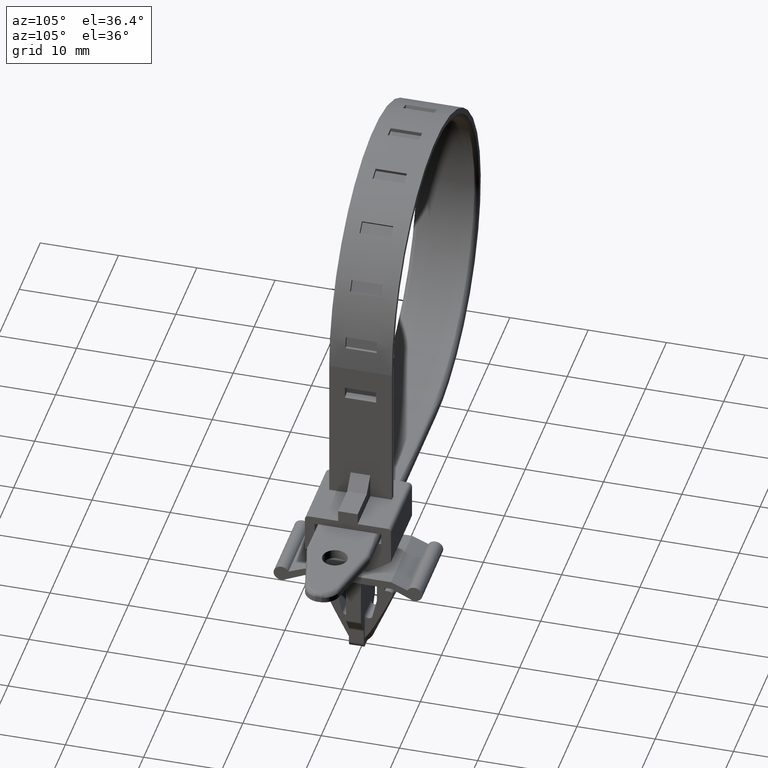
[diagram: clean part render]
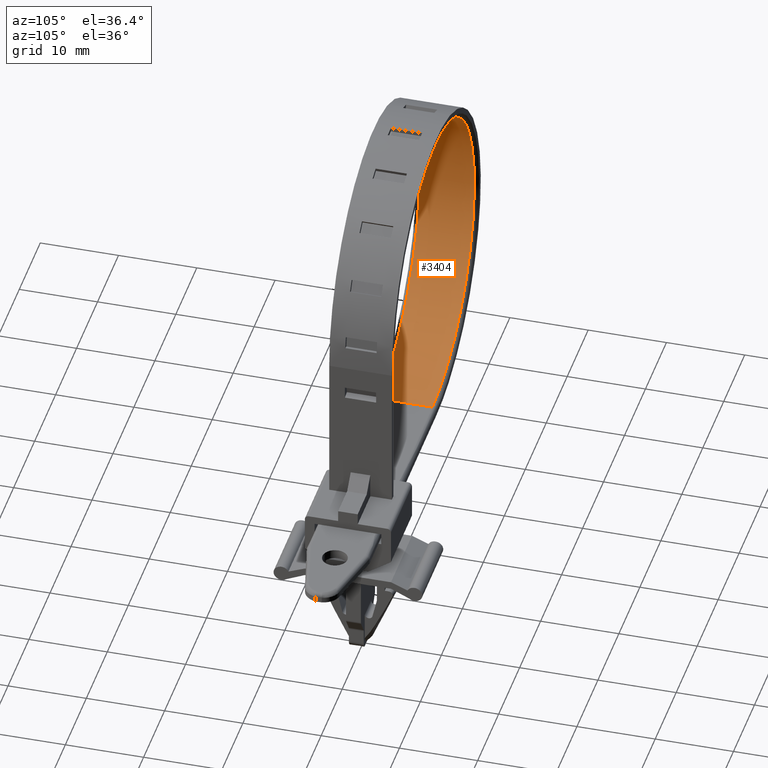
[diagram: same view with one face highlighted and labeled with its STEP entity id]
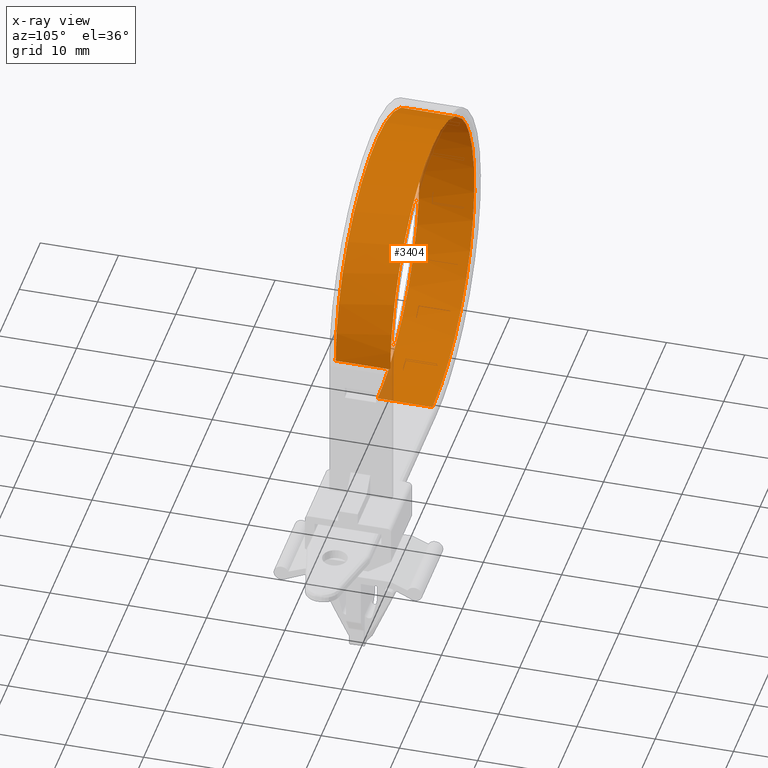
[diagram: x-ray of the same camera — body ghosted, the highlighted face saturated]
A machine part, auxiliary view. The second image highlights one B-rep face of the part: STEP entity #3404.
The next image is the same camera in x-ray: the body ghosted, the highlighted face saturated — about 2% of this face is hidden behind the body in this view.
In plain terms, the highlighted face is a freeform B-spline surface patch.
Its self-contained STEP definition (entity closure, byte-faithful):
#625=CARTESIAN_POINT('',(10.0,3.500000000000060,10.0));
#626=VERTEX_POINT('',#625);
#697=CARTESIAN_POINT('',(-10.0,3.500000000000060,-10.0));
#698=VERTEX_POINT('',#697);
#763=CARTESIAN_POINT('',(-24.142134483005631,3.500000000000060,24.142136764456168));
#764=VERTEX_POINT('',#763);
#765=CARTESIAN_POINT('',(-24.142134483005631,3.500000000000060,24.142136764456168));
#766=CARTESIAN_POINT('',(-23.317847861700731,3.500000000000055,24.966585758197450));
#767=CARTESIAN_POINT('',(-21.925621604173269,3.500000000000065,26.134152434385928));
#768=CARTESIAN_POINT('',(-19.846578110946240,3.500000000000060,27.443961796555399));
#769=CARTESIAN_POINT('',(-17.870454856183390,3.500000000000082,28.436808755740810));
#770=CARTESIAN_POINT('',(-15.586785604694329,3.500000000000020,29.265792239664680));
#771=CARTESIAN_POINT('',(-13.123735963666290,3.500000000000101,29.803015944650149));
#772=CARTESIAN_POINT('',(-10.462611216033221,3.500000000000051,30.056917502573899));
#773=CARTESIAN_POINT('',(-7.756281247848142,3.500000000000059,29.946852485285611));
#774=CARTESIAN_POINT('',(-5.067879473345124,3.500000000000058,29.435583284448722));
#775=CARTESIAN_POINT('',(-2.932989271892262,3.500000000000060,28.746595824120110));
#776=CARTESIAN_POINT('',(-1.105076466576207,3.500000000000080,27.944691259019510));
#777=CARTESIAN_POINT('',(0.856801691978504,3.499999999999931,26.859059403285659));
#778=CARTESIAN_POINT('',(3.119748353439944,3.500000000000485,25.210249085112270));
#779=CARTESIAN_POINT('',(5.220283438491029,3.499999999999365,23.086979664075969));
#780=CARTESIAN_POINT('',(6.747205734812825,3.500000000000232,21.004769943980499));
#781=CARTESIAN_POINT('',(7.777874732811910,3.500000000000036,19.223784949047179));
#782=CARTESIAN_POINT('',(8.550377036362397,3.500000000000060,17.550799752685808));
#783=CARTESIAN_POINT('',(9.237667814295248,3.500000000000071,15.611249613686530));
#784=CARTESIAN_POINT('',(9.832384919341958,3.499999999999940,13.098606963147461));
#785=CARTESIAN_POINT('',(10.000083710539590,3.500000000000330,11.135140342358490));
#786=CARTESIAN_POINT('',(10.0,3.500000000000060,10.0));
#787=B_SPLINE_CURVE_WITH_KNOTS('',3,(#765,#766,#767,#768,#769,#770,#771,#772,#773,#774,#775,#776,#777,#778,#779,#780,#781,#782,#783,#784,#785,#786),.UNSPECIFIED.,.F.,.U.,(4,1,1,1,1,1,1,1,1,1,1,1,1,1,1,1,1,1,1,4),(0.000000063187080,3.497471293805830,5.430273192020863,7.363111394191435,10.124280659323730,12.701375958789059,14.910311764292929,18.131669887782252,20.800809746265990,23.101797327227828,24.850497411813102,26.783324633672201,29.820611471168561,33.226050318446497,35.711104036625628,37.551882284197177,39.392663899587347,41.233439796478613,43.718518970492347,47.123929772952572),.UNSPECIFIED.);
#788=EDGE_CURVE('',#764,#626,#787,.T.);
#790=CARTESIAN_POINT('',(-10.0,3.500000000000060,-10.0));
#791=CARTESIAN_POINT('',(-11.012427240051270,3.500000000000054,-10.000057405380280));
#792=CARTESIAN_POINT('',(-13.129299544871680,3.500000000000077,-9.838934971236489));
#793=CARTESIAN_POINT('',(-16.273127362870259,3.500000000000033,-9.087317562861998));
#794=CARTESIAN_POINT('',(-19.363338902471138,3.500000000000104,-7.779454691694162));
#795=CARTESIAN_POINT('',(-21.958377528072589,3.499999999999961,-6.122137321127825));
#796=CARTESIAN_POINT('',(-23.976607673907889,3.500000000000176,-4.367557744259251));
#797=CARTESIAN_POINT('',(-25.654876863774749,3.499999999999907,-2.530109474545861));
#798=CARTESIAN_POINT('',(-27.111913242486452,3.500000000000130,-0.471410614202615));
#799=CARTESIAN_POINT('',(-28.219497570760460,3.500000000000052,1.655454100834017));
#800=CARTESIAN_POINT('',(-28.978480083927380,3.500000000000058,3.600847803292749));
#801=CARTESIAN_POINT('',(-29.513167644182150,3.500000000000060,5.460573960113257));
#802=CARTESIAN_POINT('',(-29.889995916866472,3.500000000000062,7.546675430232479));
#803=CARTESIAN_POINT('',(-30.055617145915750,3.500000000000060,9.968724740676189));
#804=CARTESIAN_POINT('',(-29.906613013060358,3.500000000000059,12.424826326091980));
#805=CARTESIAN_POINT('',(-29.397822894684019,3.500000000000063,15.111743413176921));
#806=CARTESIAN_POINT('',(-28.554126343802981,3.500000000000056,17.652640029270390));
#807=CARTESIAN_POINT('',(-27.380767621988841,3.500000000000063,19.988030774801040));
#808=CARTESIAN_POINT('',(-25.960358994970981,3.500000000000058,22.142297990062069));
#809=CARTESIAN_POINT('',(-24.858077749014470,3.500000000000062,23.426288388134079));
#810=CARTESIAN_POINT('',(-24.142134483005631,3.500000000000060,24.142136764456168));
#811=B_SPLINE_CURVE_WITH_KNOTS('',3,(#790,#791,#792,#793,#794,#795,#796,#797,#798,#799,#800,#801,#802,#803,#804,#805,#806,#807,#808,#809,#810),.UNSPECIFIED.,.F.,.U.,(4,1,1,1,1,1,1,1,1,1,1,1,1,1,1,1,1,1,4),(0.000000063227027,3.037276062960224,6.350666567525835,9.664086756705132,13.069530050611650,15.554584518340430,17.671479898204861,20.524685227477629,23.101798908984321,24.850499113296980,26.783326467497488,28.900223446784601,31.201194896433339,34.054400278231178,36.263342534148393,39.392666596725590,42.061816588926867,44.086654461404180,47.123932999419260),.UNSPECIFIED.);
#812=EDGE_CURVE('',#698,#764,#811,.T.);
#1098=CARTESIAN_POINT('',(10.0,-3.499999999999950,10.0));
#1099=VERTEX_POINT('',#1098);
#1164=CARTESIAN_POINT('',(-10.0,-3.499999999999950,-10.0));
#1165=VERTEX_POINT('',#1164);
#1176=CARTESIAN_POINT('',(-24.142136764456168,-3.499999999999950,24.142134483005631));
#1177=VERTEX_POINT('',#1176);
#1178=CARTESIAN_POINT('',(-24.142136764456168,-3.499999999999950,24.142134483005631));
#1179=CARTESIAN_POINT('',(-24.966569225482260,-3.499999999999930,23.317838066097391));
#1180=CARTESIAN_POINT('',(-26.450870291286499,-3.499999999999973,21.548110759814019));
#1181=CARTESIAN_POINT('',(-28.072398452509489,-3.499999999999966,18.751110208661640));
#1182=CARTESIAN_POINT('',(-29.187960896174289,-3.499999999999914,15.885284651974169));
#1183=CARTESIAN_POINT('',(-29.788455099490740,-3.499999999999986,13.276676853114980));
#1184=CARTESIAN_POINT('',(-30.030594433190370,-3.499999999999960,10.737896642595770));
#1185=CARTESIAN_POINT('',(-29.976754467345518,-3.499999999999940,8.033775290099898));
#1186=CARTESIAN_POINT('',(-29.520602715653670,-3.499999999999954,5.331068229365204));
#1187=CARTESIAN_POINT('',(-28.746582894390230,-3.499999999999951,2.932991240855786));
#1188=CARTESIAN_POINT('',(-27.944690984376422,-3.499999999999967,1.105076552700572));
#1189=CARTESIAN_POINT('',(-26.859059518663120,-3.499999999999823,-0.856801729454075));
#1190=CARTESIAN_POINT('',(-25.210249021970679,-3.500000000000377,-3.119748332877279));
#1191=CARTESIAN_POINT('',(-23.086979684713860,-3.499999999999254,-5.220283445202749));
#1192=CARTESIAN_POINT('',(-21.004769941044589,-3.500000000000126,-6.747205733862125));
#1193=CARTESIAN_POINT('',(-19.223784949047928,-3.499999999999925,-7.777874732810783));
#1194=CARTESIAN_POINT('',(-17.550799752685808,-3.499999999999954,-8.550377036362397));
#1195=CARTESIAN_POINT('',(-15.611249613686530,-3.499999999999961,-9.237667814295248));
#1196=CARTESIAN_POINT('',(-13.098606963147461,-3.499999999999831,-9.832384919341958));
#1197=CARTESIAN_POINT('',(-11.135140342358490,-3.500000000000225,-10.000083710539590));
#1198=CARTESIAN_POINT('',(-10.0,-3.499999999999950,-10.0));
#1199=B_SPLINE_CURVE_WITH_KNOTS('',3,(#1178,#1179,#1180,#1181,#1182,#1183,#1184,#1185,#1186,#1187,#1188,#1189,#1190,#1191,#1192,#1193,#1194,#1195,#1196,#1197,#1198),.UNSPECIFIED.,.F.,.U.,(4,1,1,1,1,1,1,1,1,1,1,1,1,1,1,1,1,1,4),(0.000000063187080,3.497471293805830,6.902915318949425,9.664086094987802,12.701375958789059,14.910311764292929,17.303339148735009,20.800809746265990,23.101797327227828,24.850497411813102,26.783324633672201,29.820611471168561,33.226050318446497,35.711104036625628,37.551882284197177,39.392663899587347,41.233439796478613,43.718518970492347,47.123929772952572),.UNSPECIFIED.);
#1200=EDGE_CURVE('',#1177,#1165,#1199,.T.);
#1202=CARTESIAN_POINT('',(10.0,-3.499999999999950,10.0));
#1203=CARTESIAN_POINT('',(10.000055836765970,-3.499999999999949,11.012425745964389));
#1204=CARTESIAN_POINT('',(9.838944627139073,-3.499999999999958,13.129308741952890));
#1205=CARTESIAN_POINT('',(9.194652257641943,-3.499999999999952,15.823983029847900));
#1206=CARTESIAN_POINT('',(8.172721447199221,-3.499999999999947,18.491493081749770));
#1207=CARTESIAN_POINT('',(6.778356889738790,-3.499999999999928,21.062270463193510));
#1208=CARTESIAN_POINT('',(4.739023425086771,-3.499999999999966,23.650734069945109));
#1209=CARTESIAN_POINT('',(2.535296615676213,-3.499999999999936,25.663417540733391));
#1210=CARTESIAN_POINT('',(0.335050802278152,-3.499999999999961,27.182869430712689));
#1211=CARTESIAN_POINT('',(-2.228034333939429,-3.499999999999945,28.517811262884539));
#1212=CARTESIAN_POINT('',(-4.886119330562775,-3.499999999999954,29.409512424662481));
#1213=CARTESIAN_POINT('',(-7.546681044576861,-3.499999999999952,29.889978678305098));
#1214=CARTESIAN_POINT('',(-9.968724746113859,-3.499999999999949,30.055617149273029));
#1215=CARTESIAN_POINT('',(-12.424826191466270,-3.499999999999949,29.906612830313460));
#1216=CARTESIAN_POINT('',(-15.111744207810769,-3.499999999999953,29.397823971459388));
#1217=CARTESIAN_POINT('',(-17.652637668316220,-3.499999999999949,28.554123055818032));
#1218=CARTESIAN_POINT('',(-20.070463097813889,-3.499999999999952,27.339363226434951));
#1219=CARTESIAN_POINT('',(-22.215668767478149,-3.499999999999951,25.903575194708878));
#1220=CARTESIAN_POINT('',(-23.491354862621371,-3.499999999999950,24.792977458419021));
#1221=CARTESIAN_POINT('',(-24.142136764456168,-3.499999999999950,24.142134483005631));
#1222=B_SPLINE_CURVE_WITH_KNOTS('',3,(#1202,#1203,#1204,#1205,#1206,#1207,#1208,#1209,#1210,#1211,#1212,#1213,#1214,#1215,#1216,#1217,#1218,#1219,#1220,#1221),.UNSPECIFIED.,.F.,.U.,(4,1,1,1,1,1,1,1,1,1,1,1,1,1,1,1,1,4),(0.000000063227027,3.037276062960224,6.350666567525835,8.283503972539805,11.596905544251550,15.094389548305200,18.131671129257079,20.524685227477629,23.101798908984321,26.783326467497488,28.900223446784601,31.201194896433339,34.054400278231178,36.263342534148393,39.392666596725590,42.061816588926867,44.362774765948927,47.123932999419260),.UNSPECIFIED.);
#1223=EDGE_CURVE('',#1099,#1177,#1222,.T.);
#3366=CARTESIAN_POINT('',(-9.476461033842538,3.675000000000060,-9.993146499511138));
#3367=CARTESIAN_POINT('',(-9.476461033842538,-3.679374999999951,-9.993146499511138));
#3368=CARTESIAN_POINT('',(-30.179970302142134,3.675000000000060,-10.535286969417768));
#3369=CARTESIAN_POINT('',(-30.179970302142134,-3.679374999999951,-10.535286969417768));
#3370=CARTESIAN_POINT('',(-29.999238461283419,3.675000000000060,10.174530709967470));
#3371=CARTESIAN_POINT('',(-29.999238461283419,-3.679374999999951,10.174530709967470));
#3372=CARTESIAN_POINT('',(-29.818506620424703,3.675000000000060,30.884348389352706));
#3373=CARTESIAN_POINT('',(-29.818506620424703,-3.679374999999951,30.884348389352706));
#3374=CARTESIAN_POINT('',(-9.127612252693290,3.675000000000060,29.980964431637151));
#3375=CARTESIAN_POINT('',(-9.127612252693290,-3.679374999999951,29.980964431637151));
#3376=CARTESIAN_POINT('',(11.563282115038135,3.675000000000060,29.077580473921586));
#3377=CARTESIAN_POINT('',(11.563282115038135,-3.679374999999951,29.077580473921586));
#3378=CARTESIAN_POINT('',(9.938346674662558,3.675000000000060,8.430818085443114));
#3379=CARTESIAN_POINT('',(9.938346674662558,-3.679374999999951,8.430818085443114));
#3387=(BOUNDED_SURFACE()B_SPLINE_SURFACE(1,2,((#3366,#3368,#3370,#3372,#3374,#3376,#3378),(#3367,#3369,#3371,#3373,#3375,#3377,#3379)),.UNSPECIFIED.,.F.,.F.,.U.)B_SPLINE_SURFACE_WITH_KNOTS((2,2),(3,2,2,3),(0.0,7.354375000000012),(0.0,33.957985296768364,67.915970593536727,101.873955890305100),.UNSPECIFIED.)GEOMETRIC_REPRESENTATION_ITEM()RATIONAL_B_SPLINE_SURFACE(((1.0,0.694658370458997,1.0,0.694658370458997,1.0,0.694658370458997,1.0),(1.0,0.694658370458997,1.0,0.694658370458997,1.0,0.694658370458997,1.0)))REPRESENTATION_ITEM('')SURFACE());
#3388=CARTESIAN_POINT('',(-10.0,3.500000000000060,-10.0));
#3389=CARTESIAN_POINT('',(-10.0,-3.499999999999950,-10.0));
#3390=QUASI_UNIFORM_CURVE('',1,(#3388,#3389),.UNSPECIFIED.,.F.,.U.);
#3391=EDGE_CURVE('',#698,#1165,#3390,.T.);
#3392=ORIENTED_EDGE('',*,*,#3391,.F.);
#3393=ORIENTED_EDGE('',*,*,#812,.T.);
#3394=ORIENTED_EDGE('',*,*,#788,.T.);
#3395=CARTESIAN_POINT('',(10.0,3.500000000000060,10.0));
#3396=CARTESIAN_POINT('',(10.0,-3.499999999999950,10.0));
#3397=QUASI_UNIFORM_CURVE('',1,(#3395,#3396),.UNSPECIFIED.,.F.,.U.);
#3398=EDGE_CURVE('',#626,#1099,#3397,.T.);
#3399=ORIENTED_EDGE('',*,*,#3398,.T.);
#3400=ORIENTED_EDGE('',*,*,#1223,.T.);
#3401=ORIENTED_EDGE('',*,*,#1200,.T.);
#3402=EDGE_LOOP('',(#3392,#3393,#3394,#3399,#3400,#3401));
#3403=FACE_OUTER_BOUND('',#3402,.T.);
#3404=ADVANCED_FACE('',(#3403),#3387,.F.);